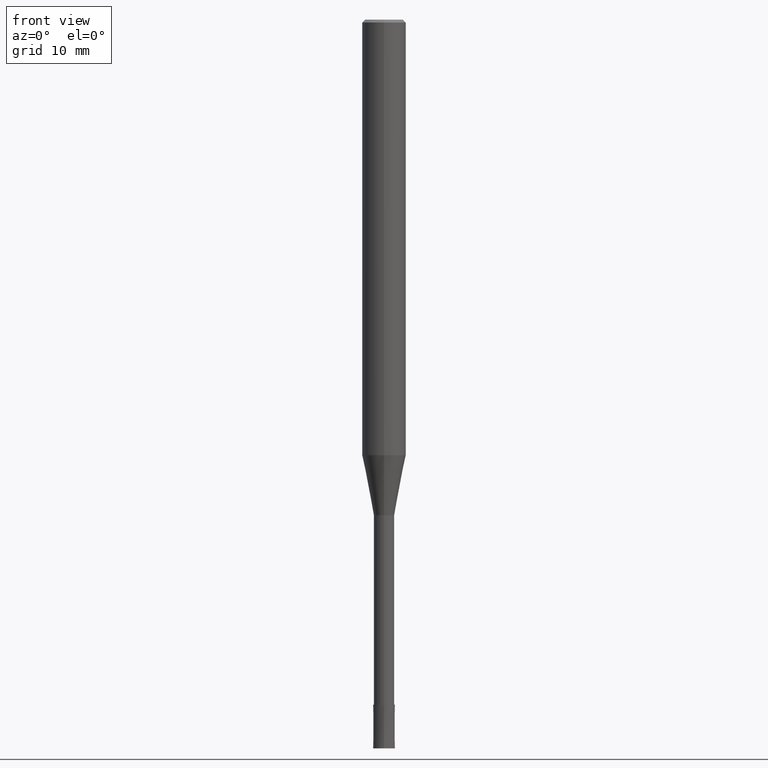
[diagram: clean part render]
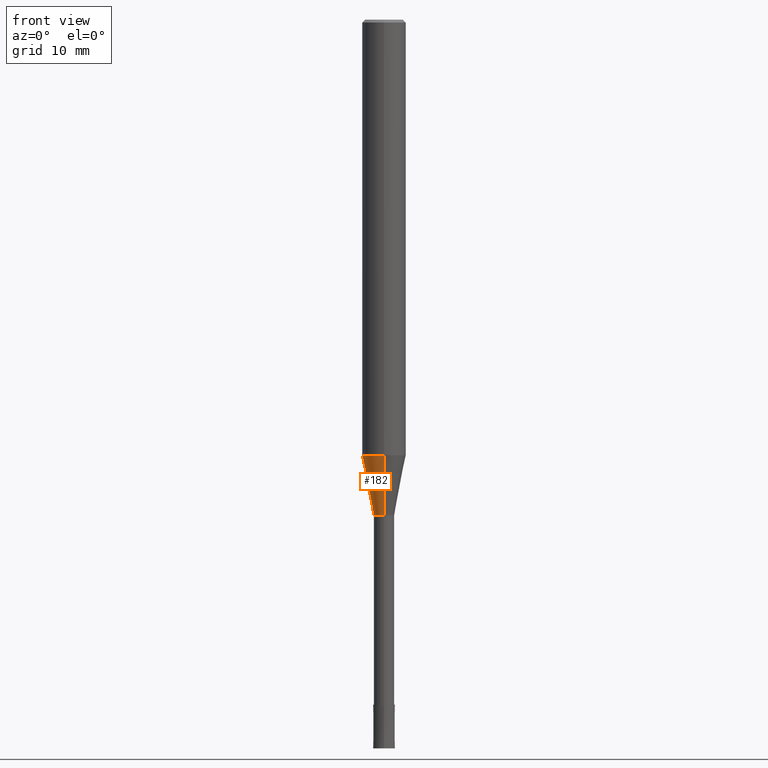
[diagram: same view with one face highlighted and labeled with its STEP entity id]
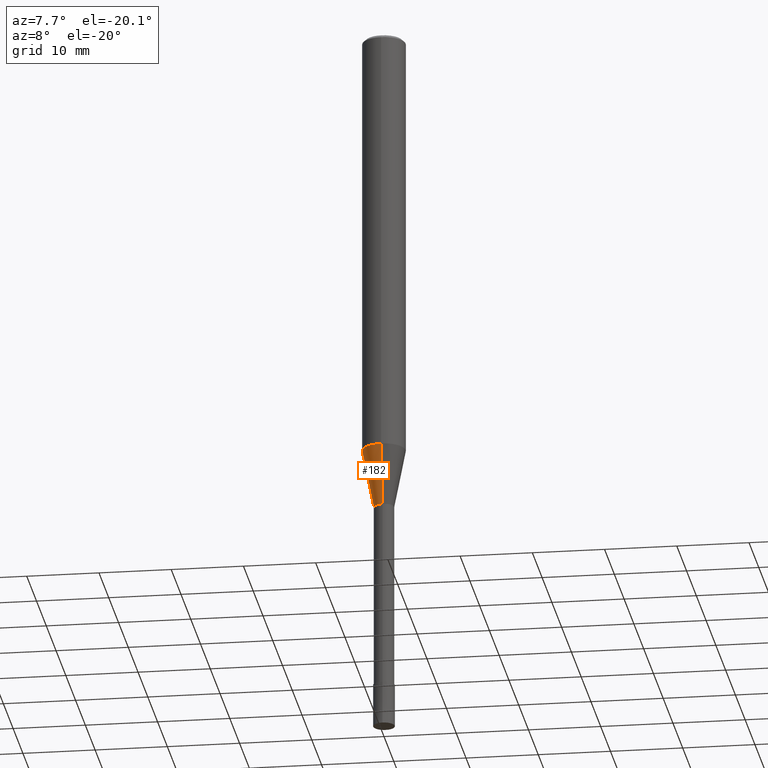
[diagram: same view with one face highlighted and labeled with its STEP entity id]
A machine part, front view. The second image highlights one B-rep face of the part: STEP entity #182.
A second angle (auxiliary view) of the same face is appended — the face is thin or edge-on in the first view.
In plain terms, the highlighted conical surface has half-angle 11 deg.
Its self-contained STEP definition (entity closure, byte-faithful):
#92=EDGE_CURVE('',#156,#160,#229,.T.);
#122=VERTEX_POINT('',#264);
#136=EDGE_CURVE('',#206,#122,#278,.T.);
#150=EDGE_CURVE('',#160,#206,#293,.T.);
#156=VERTEX_POINT('',#301);
#160=VERTEX_POINT('',#305);
#174=EDGE_CURVE('',#156,#122,#321,.T.);
#182=ADVANCED_FACE('',(#330),#331,.T.);
#206=VERTEX_POINT('',#359);
#229=LINE('',#375,#376);
#264=CARTESIAN_POINT('',(0.0,1.39995,-68.0));
#278=LINE('',#437,#438);
#293=CIRCLE('',#462,2.99995);
#301=CARTESIAN_POINT('',(1.71438766503364E-016,-1.39995,-68.0));
#305=CARTESIAN_POINT('',(3.67375783114944E-016,-2.99995,-59.769));
#321=CIRCLE('',#496,1.39995);
#330=FACE_OUTER_BOUND('',#506,.T.);
#331=CONICAL_SURFACE('',#507,2.19995,0.191992735564386);
#359=CARTESIAN_POINT('',(0.0,2.99995,-59.769));
#375=CARTESIAN_POINT('',(2.69407274809154E-016,-2.19995,-63.8845));
#376=VECTOR('',#542,1.0);
#437=CARTESIAN_POINT('',(-2.69407274809154E-016,2.19995,-63.8845));
#438=VECTOR('',#593,1.0);
#462=AXIS2_PLACEMENT_3D('',#611,#612,#613);
#496=AXIS2_PLACEMENT_3D('',#654,#655,#656);
#506=EDGE_LOOP('',(#669,#670,#671,#672));
#507=AXIS2_PLACEMENT_3D('',#673,#674,#675);
#542=DIRECTION('',(2.33673743245985E-017,-0.190815393466331,0.981625939763355));
#593=DIRECTION('',(2.33673743245985E-017,-0.190815393466331,-0.981625939763355));
#611=CARTESIAN_POINT('',(0.0,0.0,-59.769));
#612=DIRECTION('',(0.0,0.0,-1.0));
#613=DIRECTION('',(0.0,1.0,0.0));
#654=CARTESIAN_POINT('',(0.0,0.0,-68.0));
#655=DIRECTION('',(0.0,0.0,-1.0));
#656=DIRECTION('',(0.0,1.0,0.0));
#669=ORIENTED_EDGE('',*,*,#136,.T.);
#670=ORIENTED_EDGE('',*,*,#174,.F.);
#671=ORIENTED_EDGE('',*,*,#92,.T.);
#672=ORIENTED_EDGE('',*,*,#150,.T.);
#673=CARTESIAN_POINT('',(0.0,0.0,-63.8845));
#674=DIRECTION('',(-0.0,-0.0,1.0));
#675=DIRECTION('',(0.0,1.0,0.0));